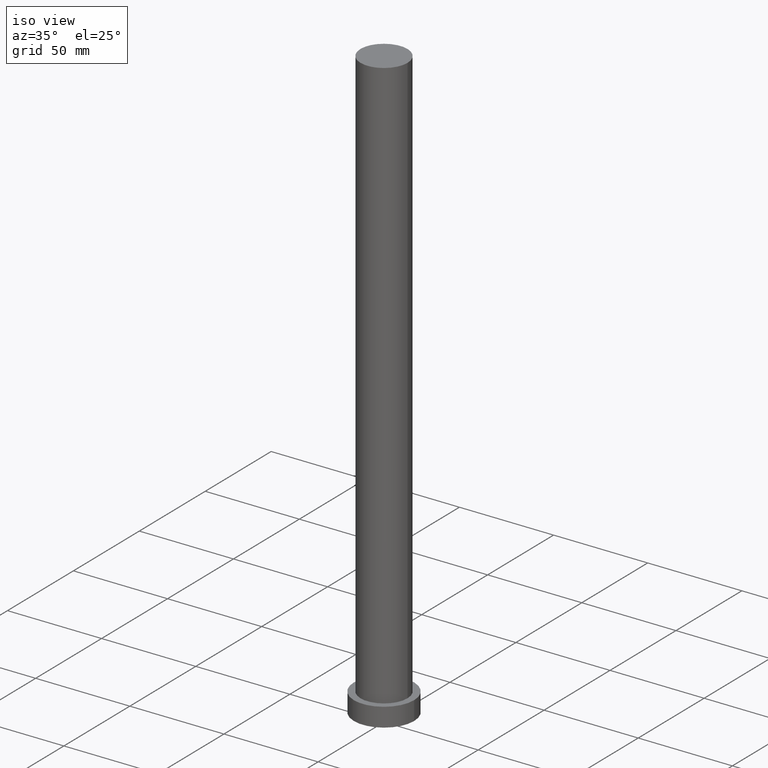
[diagram: clean part render]
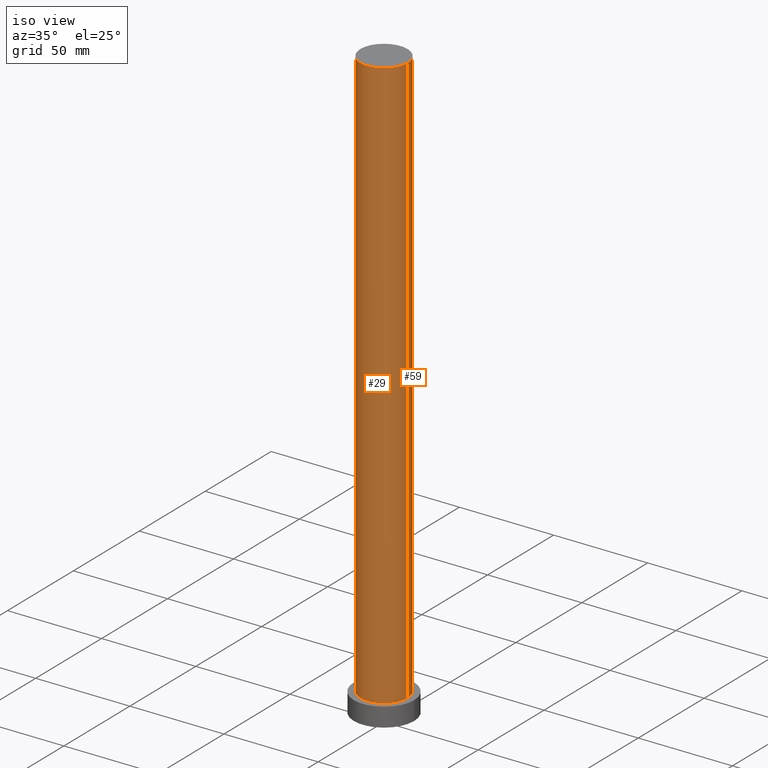
[diagram: same view with one multi-face feature highlighted, each face labeled with its STEP entity id]
A machine part, iso view. The highlighted faces form ONE feature: a constant-radius fillet chain: 2 tangent blend faces with common blend radius 12.5 mm. The faces share edges in the B-rep.
Their STEP definitions:
[1] entity #59 (Cylinder):
#7 = DIRECTION ( 'NONE',  ( 0.000000000000000000, 0.000000000000000000, 1.000000000000000000 ) ) ;
#16 = VERTEX_POINT ( 'NONE', #189 ) ;
#27 = CARTESIAN_POINT ( 'NONE',  ( 12.50000000000000000, 1.530808498934191521E-15, 315.0000000000000000 ) ) ;
#28 = CARTESIAN_POINT ( 'NONE',  ( -12.50000000000000000, 0.000000000000000000, 315.0000000000000000 ) ) ;
#34 = VECTOR ( 'NONE', #58, 1000.000000000000000 ) ;
#36 = ORIENTED_EDGE ( 'NONE', *, *, #101, .T. ) ;
#41 = VERTEX_POINT ( 'NONE', #73 ) ;
#58 = DIRECTION ( 'NONE',  ( -0.000000000000000000, -0.000000000000000000, -1.000000000000000000 ) ) ;
#59 = ADVANCED_FACE ( 'NONE', ( #172 ), #91, .T. ) ;
#72 = DIRECTION ( 'NONE',  ( 0.000000000000000000, 0.000000000000000000, 1.000000000000000000 ) ) ;
#73 = CARTESIAN_POINT ( 'NONE',  ( -12.50000000000000000, 0.000000000000000000, 315.0000000000000000 ) ) ;
#77 = CARTESIAN_POINT ( 'NONE',  ( 12.50000000000000000, 1.530808498934191521E-15, 10.00000000000000000 ) ) ;
#84 = AXIS2_PLACEMENT_3D ( 'NONE', #174, #242, #240 ) ;
#85 = EDGE_LOOP ( 'NONE', ( #236, #36, #165, #218 ) ) ;
#87 = VERTEX_POINT ( 'NONE', #222 ) ;
#91 = CYLINDRICAL_SURFACE ( 'NONE', #84, 12.50000000000000000 ) ;
#101 = EDGE_CURVE ( 'NONE', #87, #203, #111, .T. ) ;
#111 = LINE ( 'NONE', #27, #123 ) ;
#116 = CARTESIAN_POINT ( 'NONE',  ( 0.000000000000000000, 0.000000000000000000, 315.0000000000000000 ) ) ;
#122 = AXIS2_PLACEMENT_3D ( 'NONE', #116, #72, #137 ) ;
#123 = VECTOR ( 'NONE', #191, 1000.000000000000000 ) ;
#131 = CIRCLE ( 'NONE', #122, 12.50000000000000000 ) ;
#137 = DIRECTION ( 'NONE',  ( 1.000000000000000000, 0.000000000000000000, 0.000000000000000000 ) ) ;
#157 = CARTESIAN_POINT ( 'NONE',  ( 0.000000000000000000, 0.000000000000000000, 10.00000000000000000 ) ) ;
#165 = ORIENTED_EDGE ( 'NONE', *, *, #177, .T. ) ;
#166 = EDGE_CURVE ( 'NONE', #87, #41, #131, .T. ) ;
#172 = FACE_OUTER_BOUND ( 'NONE', #85, .T. ) ;
#174 = CARTESIAN_POINT ( 'NONE',  ( 0.000000000000000000, 0.000000000000000000, 315.0000000000000000 ) ) ;
#177 = EDGE_CURVE ( 'NONE', #203, #16, #239, .T. ) ;
#180 = AXIS2_PLACEMENT_3D ( 'NONE', #157, #7, #207 ) ;
#189 = CARTESIAN_POINT ( 'NONE',  ( -12.50000000000000000, 0.000000000000000000, 10.00000000000000000 ) ) ;
#191 = DIRECTION ( 'NONE',  ( -0.000000000000000000, -0.000000000000000000, -1.000000000000000000 ) ) ;
#203 = VERTEX_POINT ( 'NONE', #77 ) ;
#207 = DIRECTION ( 'NONE',  ( 1.000000000000000000, 0.000000000000000000, 0.000000000000000000 ) ) ;
#216 = LINE ( 'NONE', #28, #34 ) ;
#218 = ORIENTED_EDGE ( 'NONE', *, *, #255, .F. ) ;
#222 = CARTESIAN_POINT ( 'NONE',  ( 12.50000000000000000, 1.530808498934191521E-15, 315.0000000000000000 ) ) ;
#236 = ORIENTED_EDGE ( 'NONE', *, *, #166, .F. ) ;
#239 = CIRCLE ( 'NONE', #180, 12.50000000000000000 ) ;
#240 = DIRECTION ( 'NONE',  ( -1.000000000000000000, 0.000000000000000000, 0.000000000000000000 ) ) ;
#242 = DIRECTION ( 'NONE',  ( -0.000000000000000000, -0.000000000000000000, -1.000000000000000000 ) ) ;
#255 = EDGE_CURVE ( 'NONE', #41, #16, #216, .T. ) ;
[2] entity #29 (Cylinder):
#16 = VERTEX_POINT ( 'NONE', #189 ) ;
#23 = CARTESIAN_POINT ( 'NONE',  ( 0.000000000000000000, 0.000000000000000000, 10.00000000000000000 ) ) ;
#24 = AXIS2_PLACEMENT_3D ( 'NONE', #141, #170, #210 ) ;
#27 = CARTESIAN_POINT ( 'NONE',  ( 12.50000000000000000, 1.530808498934191521E-15, 315.0000000000000000 ) ) ;
#28 = CARTESIAN_POINT ( 'NONE',  ( -12.50000000000000000, 0.000000000000000000, 315.0000000000000000 ) ) ;
#29 = ADVANCED_FACE ( 'NONE', ( #244 ), #168, .T. ) ;
#32 = CIRCLE ( 'NONE', #128, 12.50000000000000000 ) ;
#34 = VECTOR ( 'NONE', #58, 1000.000000000000000 ) ;
#35 = ORIENTED_EDGE ( 'NONE', *, *, #74, .F. ) ;
#41 = VERTEX_POINT ( 'NONE', #73 ) ;
#58 = DIRECTION ( 'NONE',  ( -0.000000000000000000, -0.000000000000000000, -1.000000000000000000 ) ) ;
#64 = AXIS2_PLACEMENT_3D ( 'NONE', #213, #228, #238 ) ;
#70 = DIRECTION ( 'NONE',  ( 1.000000000000000000, 0.000000000000000000, 0.000000000000000000 ) ) ;
#73 = CARTESIAN_POINT ( 'NONE',  ( -12.50000000000000000, 0.000000000000000000, 315.0000000000000000 ) ) ;
#74 = EDGE_CURVE ( 'NONE', #41, #87, #221, .T. ) ;
#77 = CARTESIAN_POINT ( 'NONE',  ( 12.50000000000000000, 1.530808498934191521E-15, 10.00000000000000000 ) ) ;
#87 = VERTEX_POINT ( 'NONE', #222 ) ;
#101 = EDGE_CURVE ( 'NONE', #87, #203, #111, .T. ) ;
#103 = EDGE_CURVE ( 'NONE', #16, #203, #32, .T. ) ;
#105 = ORIENTED_EDGE ( 'NONE', *, *, #101, .F. ) ;
#106 = EDGE_LOOP ( 'NONE', ( #105, #35, #107, #252 ) ) ;
#107 = ORIENTED_EDGE ( 'NONE', *, *, #255, .T. ) ;
#111 = LINE ( 'NONE', #27, #123 ) ;
#123 = VECTOR ( 'NONE', #191, 1000.000000000000000 ) ;
#128 = AXIS2_PLACEMENT_3D ( 'NONE', #23, #159, #70 ) ;
#141 = CARTESIAN_POINT ( 'NONE',  ( 0.000000000000000000, 0.000000000000000000, 315.0000000000000000 ) ) ;
#159 = DIRECTION ( 'NONE',  ( 0.000000000000000000, 0.000000000000000000, 1.000000000000000000 ) ) ;
#168 = CYLINDRICAL_SURFACE ( 'NONE', #24, 12.50000000000000000 ) ;
#170 = DIRECTION ( 'NONE',  ( -0.000000000000000000, -0.000000000000000000, -1.000000000000000000 ) ) ;
#189 = CARTESIAN_POINT ( 'NONE',  ( -12.50000000000000000, 0.000000000000000000, 10.00000000000000000 ) ) ;
#191 = DIRECTION ( 'NONE',  ( -0.000000000000000000, -0.000000000000000000, -1.000000000000000000 ) ) ;
#203 = VERTEX_POINT ( 'NONE', #77 ) ;
#210 = DIRECTION ( 'NONE',  ( -1.000000000000000000, 0.000000000000000000, 0.000000000000000000 ) ) ;
#213 = CARTESIAN_POINT ( 'NONE',  ( 0.000000000000000000, 0.000000000000000000, 315.0000000000000000 ) ) ;
#216 = LINE ( 'NONE', #28, #34 ) ;
#221 = CIRCLE ( 'NONE', #64, 12.50000000000000000 ) ;
#222 = CARTESIAN_POINT ( 'NONE',  ( 12.50000000000000000, 1.530808498934191521E-15, 315.0000000000000000 ) ) ;
#228 = DIRECTION ( 'NONE',  ( 0.000000000000000000, 0.000000000000000000, 1.000000000000000000 ) ) ;
#238 = DIRECTION ( 'NONE',  ( 1.000000000000000000, 0.000000000000000000, 0.000000000000000000 ) ) ;
#244 = FACE_OUTER_BOUND ( 'NONE', #106, .T. ) ;
#252 = ORIENTED_EDGE ( 'NONE', *, *, #103, .T. ) ;
#255 = EDGE_CURVE ( 'NONE', #41, #16, #216, .T. ) ;